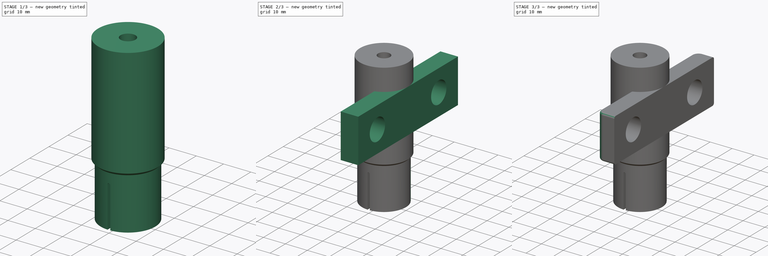
[diagram: build sequence overview — one tinted view per stage of 3, left to right]
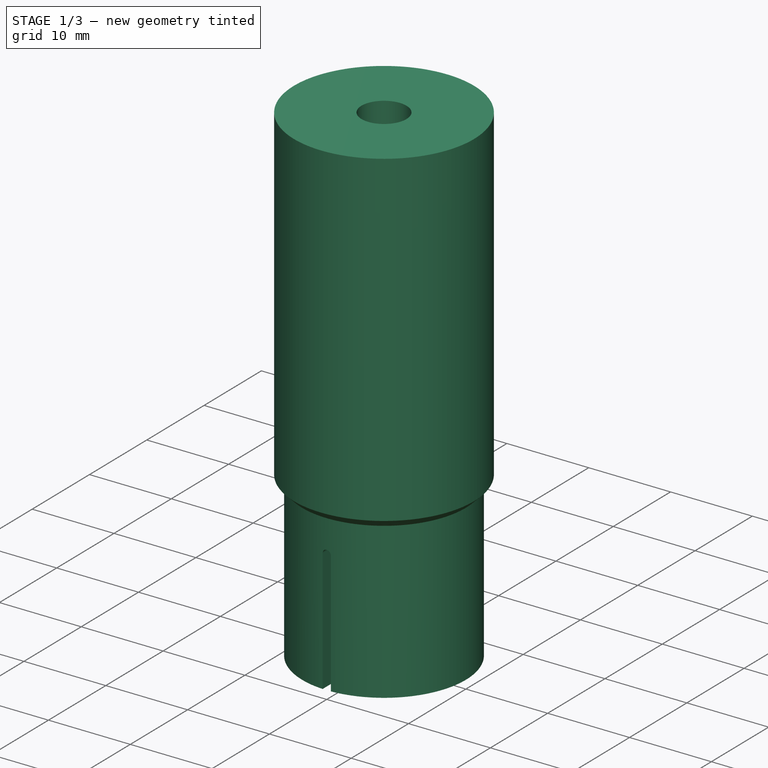
[diagram: stage 1 of 3 — iso view after this stage's code; geometry added in this stage tinted green]
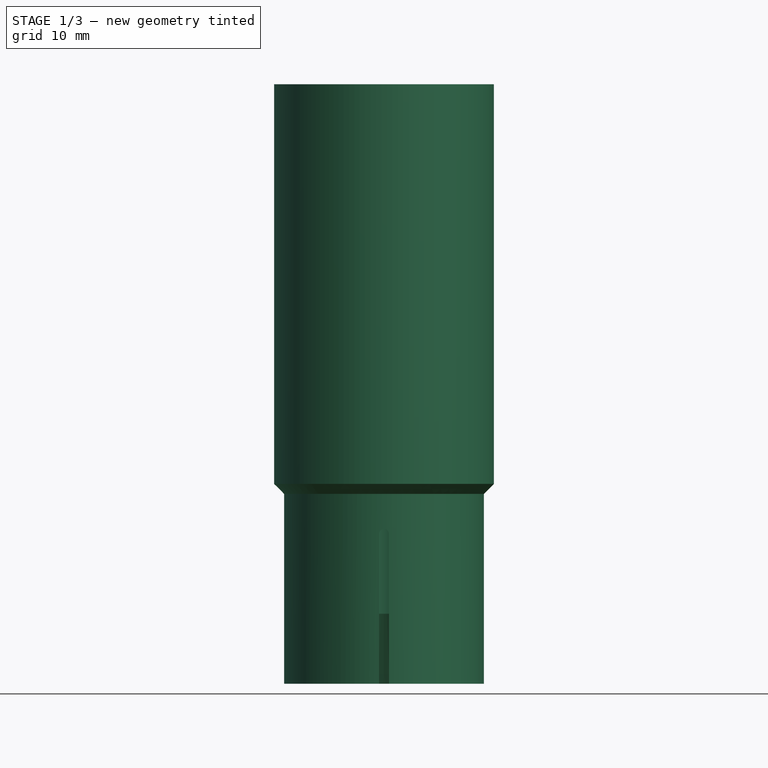
[diagram: stage 1 of 3 — front view after this stage's code; geometry added in this stage tinted green]
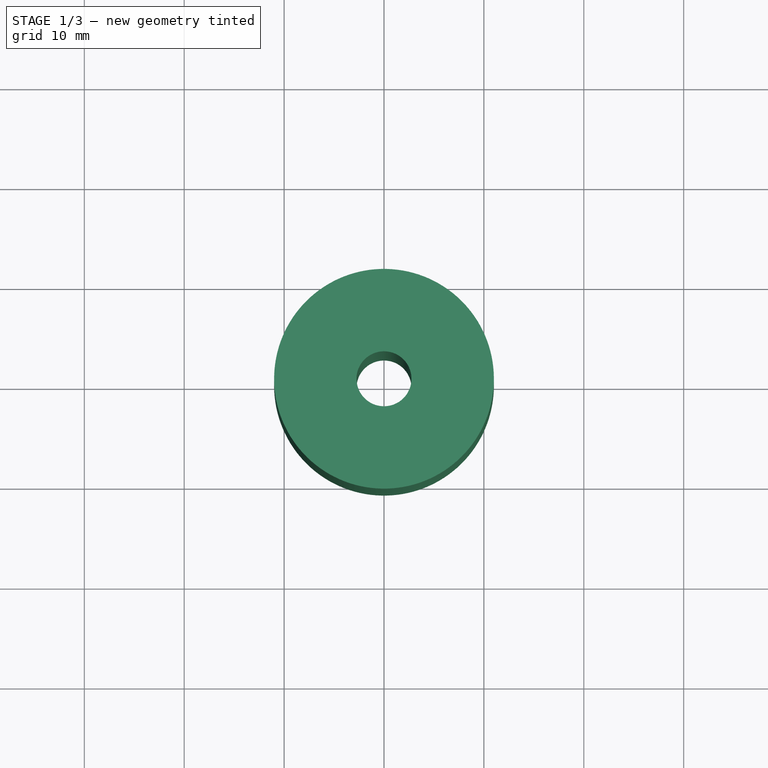
[diagram: stage 1 of 3 — top view after this stage's code; geometry added in this stage tinted green]
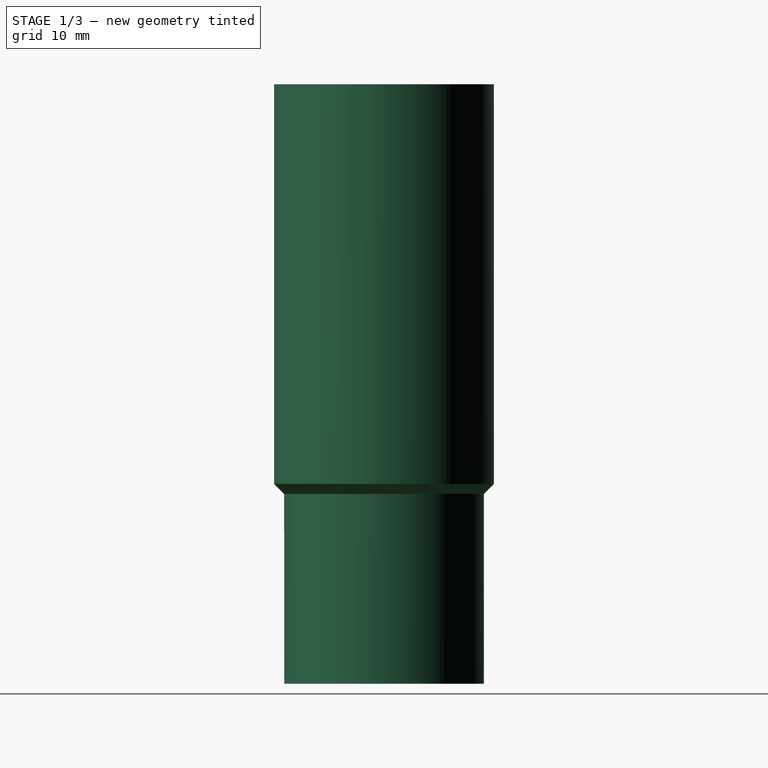
[diagram: stage 1 of 3 — right view after this stage's code; geometry added in this stage tinted green]
FCSTD DOCUMENT  (FreeCAD 0.20R27319 (Git))
Label: StopWithMounting
License: All rights reserved
LicenseURL: http://en.wikipedia.org/wiki/All_rights_reserved
objects: Sketcher::SketchObject×3, PartDesign::Plane×2, PartDesign::Fillet×2, PartDesign::Revolution×1, PartDesign::Pocket×1, PartDesign::PolarPattern×1, Spreadsheet::Sheet×1, PartDesign::Pad×1, PartDesign::Body×1
note: 17 computed .brp shape members not serialized (recipe doc carries the construction recipe); baked Part::Feature solids carry a one-line shape summary decoded from their .brp

FEATURE [Sketcher::SketchObject] Sketch
  FullyConstrained = true
  MapMode = 5
  Placement = pos=(0,0,0) rot=(1,0,0;1.5708rad)
  Support = -> [XZ_Plane]
  expr: Constraints[19] = 90 + 45 + 20
  expr: Constraints[7] = <<Parameters>>.StopHeight
  sketch-geometry (7):
    g0: LineSegment StartX=2.75 StartY=40 StartZ=0 EndX=11 EndY=40 EndZ=0
    g1: LineSegment StartX=11 StartY=40 StartZ=0 EndX=11 EndY=0 EndZ=0
    g2: LineSegment StartX=10 StartY=-20 StartZ=0 EndX=6.01415 EndY=-20 EndZ=0
    g3: LineSegment StartX=2.75 StartY=-13 StartZ=0 EndX=2.75 EndY=40 EndZ=0
    g4: LineSegment StartX=11 StartY=0 StartZ=0 EndX=10 EndY=-1 EndZ=0
    g5: LineSegment StartX=10 StartY=-1 StartZ=0 EndX=10 EndY=-20 EndZ=0
    g6: LineSegment StartX=2.75 StartY=-13 StartZ=0 EndX=6.01415 EndY=-20 EndZ=0
  constraints (21):
    c: Coincident(g0,g1)
    c: Horizontal(g0)
    c: Horizontal(g2)
    c: Vertical(g1)
    c: Vertical(g3)
    c: Distance(g0,g-2) = 11
    c: Distance(g0,g-2) = 2.75
    c: Distance(g0,g-1) = 40
    c: Coincident(g0,g3)
    c: Coincident(g4,g5)
    c: Vertical(g5)
    c: Distance(g5,g-2) = 10
    c: Coincident(g1,g4)
    c: Coincident(g2,g5)
    c: Coincident(g3,g6)
    c: Coincident(g2,g6)
    c: PointOnObject(g1,g-1)
    c: Angle(g4,g1,g1) = 0.785398
    c: DistanceY(g2,g1) = 20
    c: Angle(g6,g3) = 2.70526
    c: DistanceY(g2,g3) = 7
FEATURE [PartDesign::Revolution] Revolution
  Angle = 360
  Axis = (0,-2e-16,1)
  Base = (0,0,0)
  Placement = pos=(0,0,0) rot=(1,0,0;1.5708rad)
  Profile = -> Sketch
  ReferenceAxis = -> Sketch [V_Axis]
  Reversed = true
FEATURE [PartDesign::Plane] DatumPlane
  AttachmentOffset = pos=(0,0,0) rot=(1,0,0;1.5708rad)
  Length = 61.4018
  MapMode = 5
  Placement = pos=(0,-4.4e-15,-20) rot=(1,0,0;4.71239rad)
  ResizeMode = 0
  Support = -> [Revolution]
  Width = 76.4018
FEATURE [Sketcher::SketchObject] Sketch001
  FullyConstrained = true
  MapMode = 5
  Placement = pos=(0,-4.4e-15,-20) rot=(-1,0,0;1.5708rad)
  Support = -> [DatumPlane]
  sketch-geometry (5):
    g0: LineSegment StartX=0.5 StartY=-15 StartZ=0 EndX=0.5 EndY=20 EndZ=0
    g1: LineSegment StartX=0.5 StartY=20 StartZ=0 EndX=-0.5 EndY=20 EndZ=0
    g2: LineSegment StartX=-0.5 StartY=20 StartZ=0 EndX=-0.5 EndY=-15 EndZ=0
    g3: GeomPoint X=0 Y=0 Z=0
    g4: ArcOfCircle CenterX=0 CenterY=-15 CenterZ=0 NormalX=0 NormalY=0 NormalZ=1 AngleXU=0 Radius=0.5 StartAngle=3.14159 EndAngle=6.28319
  constraints (12):
    c: Coincident(g0,g1)
    c: Coincident(g1,g2)
    c: Horizontal(g1)
    c: Vertical(g0)
    c: Vertical(g2)
    c: Coincident(g3,g-1)
    c: DistanceX(g1,g1) = 1
    c: DistanceY(g-1,g0) = 20
    c: Tangent(g0,g4) = -1.5708
    c: Tangent(g2,g4) = -1.5708
    c: PointOnObject(g4,g-2)
    c: DistanceY(g4,g-1) = 15
FEATURE [PartDesign::Pocket] Pocket
  BaseFeature = -> Revolution
  Direction = (0,-1,-2e-16)
  Length = 0
  Length2 = 1
  Placement = pos=(0,0,0) rot=(1,0,0;1.5708rad)
  Profile = -> Sketch001
  ReferenceAxis = -> Sketch001 [N_Axis]
  Type = 1
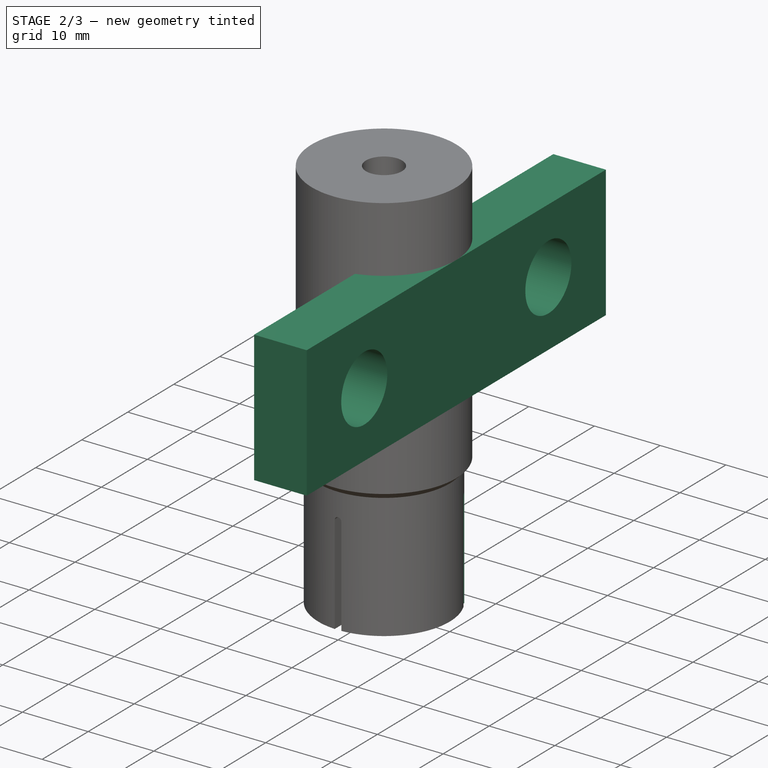
[diagram: stage 2 of 3 — iso view after this stage's code; geometry added in this stage tinted green]
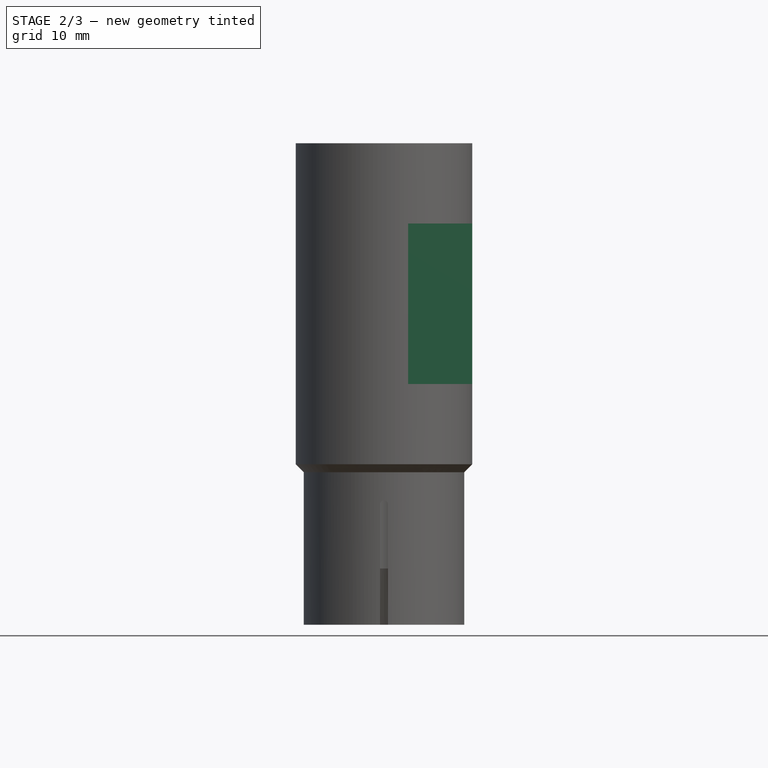
[diagram: stage 2 of 3 — front view after this stage's code; geometry added in this stage tinted green]
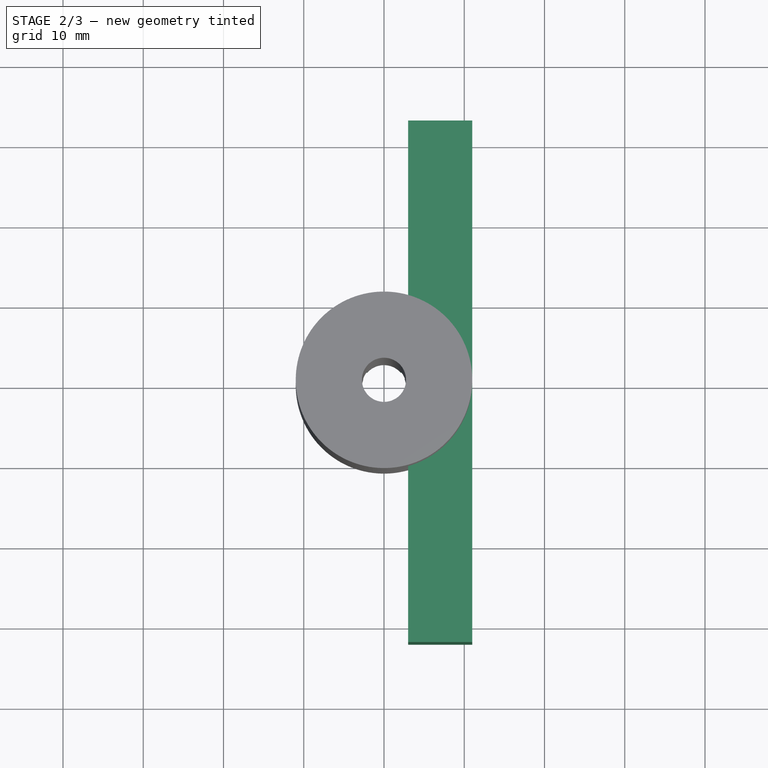
[diagram: stage 2 of 3 — top view after this stage's code; geometry added in this stage tinted green]
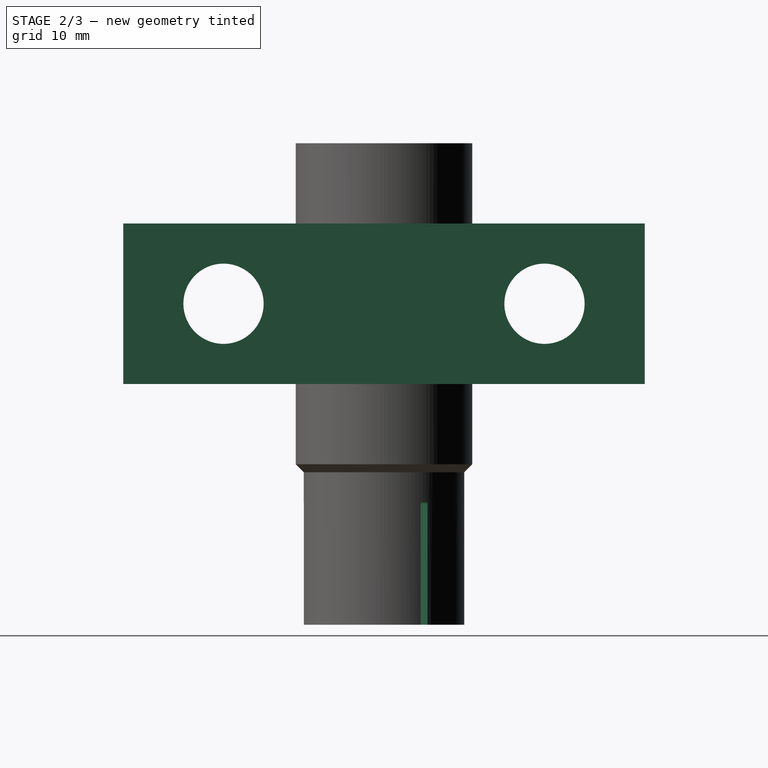
[diagram: stage 2 of 3 — right view after this stage's code; geometry added in this stage tinted green]
FEATURE [PartDesign::PolarPattern] PolarPattern
  Angle = 360
  Axis = -> Z_Axis
  BaseFeature = -> Pocket
  Occurrences = 3
  Originals = -> [Pocket]
  Overlap = 0
  Placement = pos=(0,0,0) rot=(1,0,0;1.5708rad)
FEATURE [Spreadsheet::Sheet] Spreadsheet  label="Parameters"
  cells = A1=StopHeight; B1(StopHeight)=40
FEATURE [PartDesign::Plane] DatumPlane001
  Length = 78
  MapMode = 6
  Placement = pos=(11,0,0) rot=(0.57735,0.57735,0.57735;2.0944rad)
  ResizeMode = 0
  Support = -> [PolarPattern]
  Width = 78
FEATURE [Sketcher::SketchObject] Sketch002
  FullyConstrained = true
  MapMode = 5
  Placement = pos=(11,0,0) rot=(0.57735,0.57735,0.57735;2.0944rad)
  Support = -> [DatumPlane001]
  sketch-geometry (7):
    g0: LineSegment StartX=-32.5 StartY=30 StartZ=0 EndX=-32.5 EndY=10 EndZ=0
    g1: LineSegment StartX=-32.5 StartY=10 StartZ=0 EndX=32.5 EndY=10 EndZ=0
    g2: LineSegment StartX=32.5 StartY=10 StartZ=0 EndX=32.5 EndY=30 EndZ=0
    g3: LineSegment StartX=32.5 StartY=30 StartZ=0 EndX=-32.5 EndY=30 EndZ=0
    g4: GeomPoint X=0 Y=20 Z=0
    g5: Circle CenterX=-20 CenterY=20 CenterZ=0 NormalX=0 NormalY=0 NormalZ=1 AngleXU=0 Radius=5
    g6: Circle CenterX=20 CenterY=20 CenterZ=0 NormalX=0 NormalY=0 NormalZ=1 AngleXU=0 Radius=5
  constraints (18):
    c: Coincident(g0,g1)
    c: Coincident(g1,g2)
    c: Coincident(g2,g3)
    c: Coincident(g3,g0)
    c: Horizontal(g1)
    c: Horizontal(g3)
    c: Vertical(g0)
    c: Vertical(g2)
    c: Symmetric(g1,g0,g4)
    c: PointOnObject(g4,g-2)
    c: DistanceX(g3,g3) = 65
    c: DistanceY(g2,g2) = 20
    c: Horizontal(g5,g4)
    c: DistanceX(g5,g4) = 20
    c: Diameter(g5) = 10
    c: DistanceY(g-1,g4) = 20
    c: Symmetric(g5,g6,g-2)
    c: Equal(g5,g6)
FEATURE [PartDesign::Pad] Pad
  BaseFeature = -> PolarPattern
  Direction = (1,2e-16,2e-16)
  Length = 8
  Length2 = 10
  Placement = pos=(0,0,0) rot=(1,0,0;1.5708rad)
  Profile = -> Sketch002
  ReferenceAxis = -> Sketch002 [N_Axis]
  Reversed = true
  Type = 0
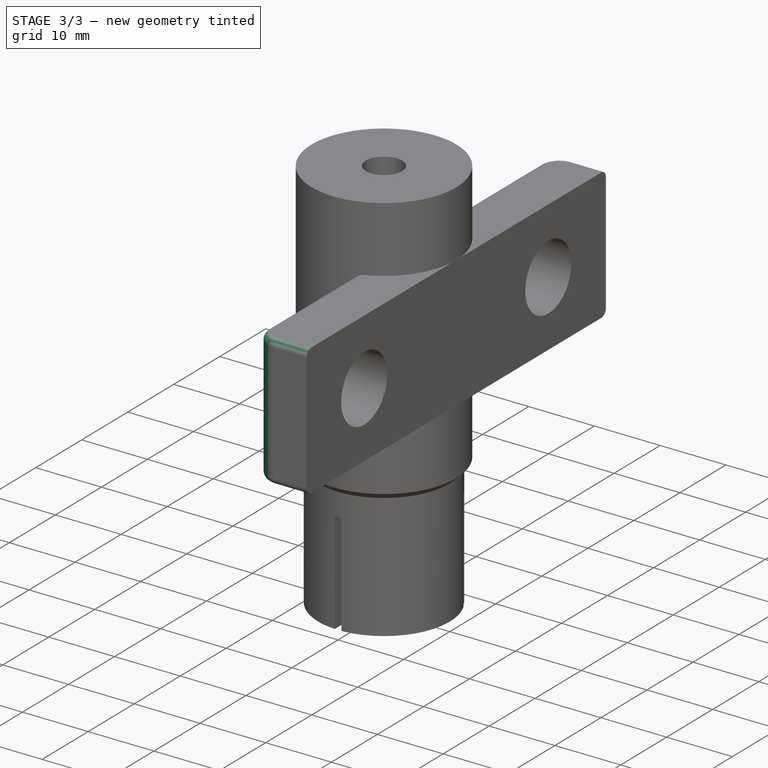
[diagram: stage 3 of 3 — iso view after this stage's code; geometry added in this stage tinted green]
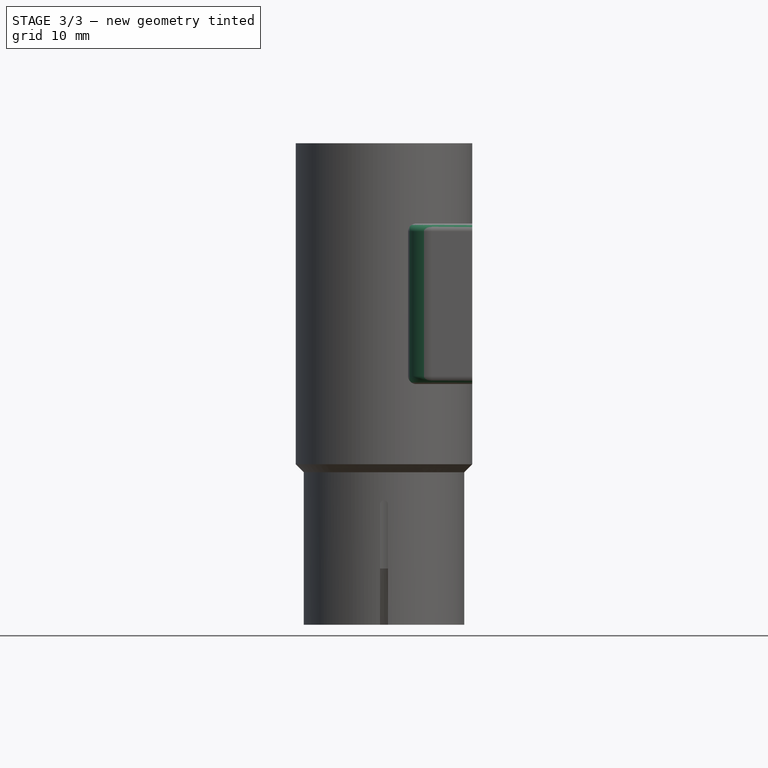
[diagram: stage 3 of 3 — front view after this stage's code; geometry added in this stage tinted green]
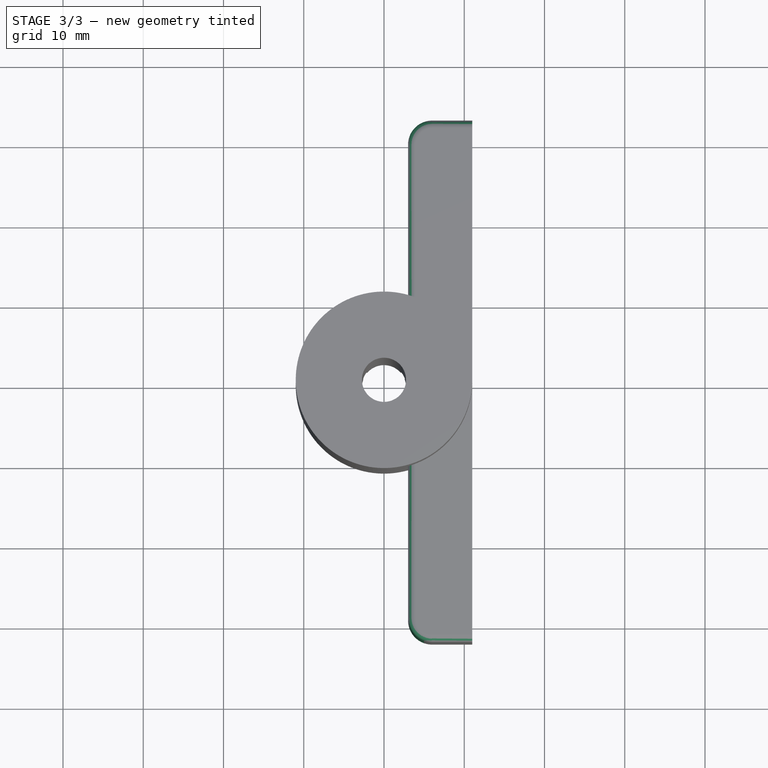
[diagram: stage 3 of 3 — top view after this stage's code; geometry added in this stage tinted green]
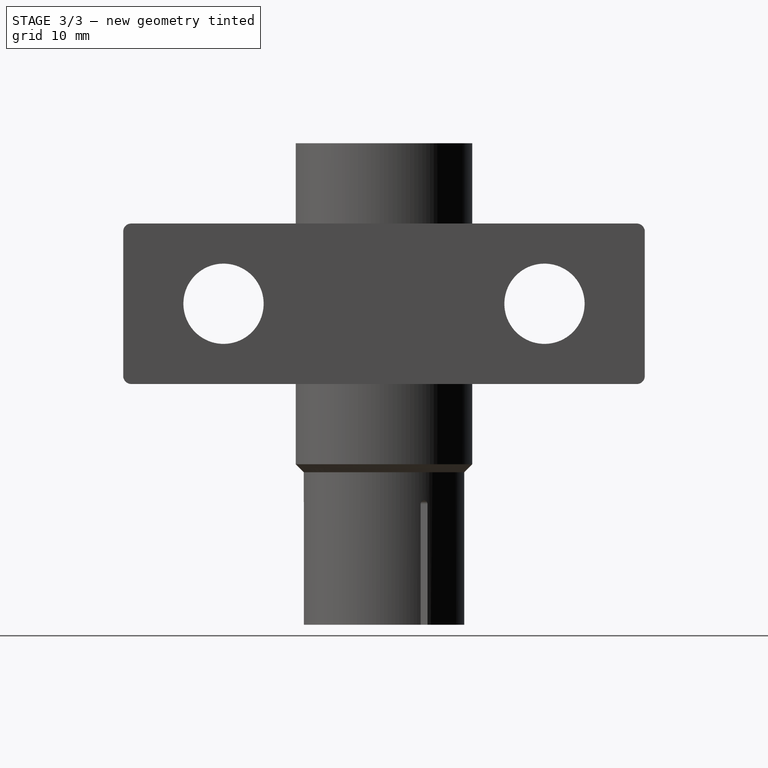
[diagram: stage 3 of 3 — right view after this stage's code; geometry added in this stage tinted green]
FEATURE [PartDesign::Fillet] Fillet
  Base = -> Pad [Edge69,Edge77]
  BaseFeature = -> Pad
  Placement = pos=(0,0,0) rot=(1,0,0;1.5708rad)
  Radius = 3
  SupportTransform = false
FEATURE [PartDesign::Fillet] Fillet001
  Base = -> Fillet [Edge35,Edge34,Edge15,Edge4]
  BaseFeature = -> Fillet
  Placement = pos=(0,0,0) rot=(1,0,0;1.5708rad)
  Radius = 1
  SupportTransform = false
FEATURE [PartDesign::Body] Body
  Group = -> [Sketch,Revolution,DatumPlane,Sketch001,Pocket,PolarPattern,DatumPlane001,Sketch002,Pad,Fillet,Fillet001]
  Origin = -> Origin
  Tip = -> Fillet001
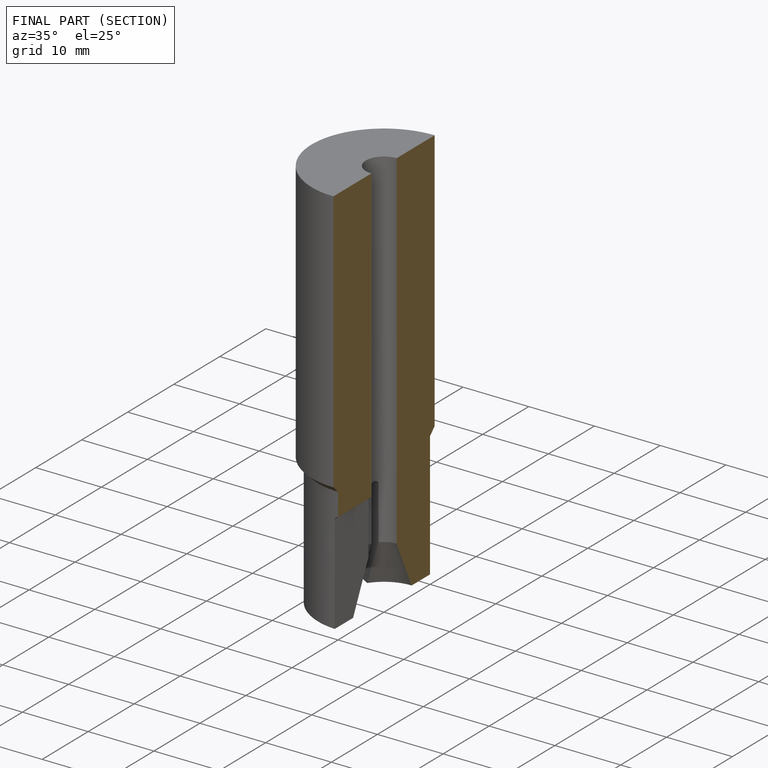
[diagram: finished part — half-section view (interior)]
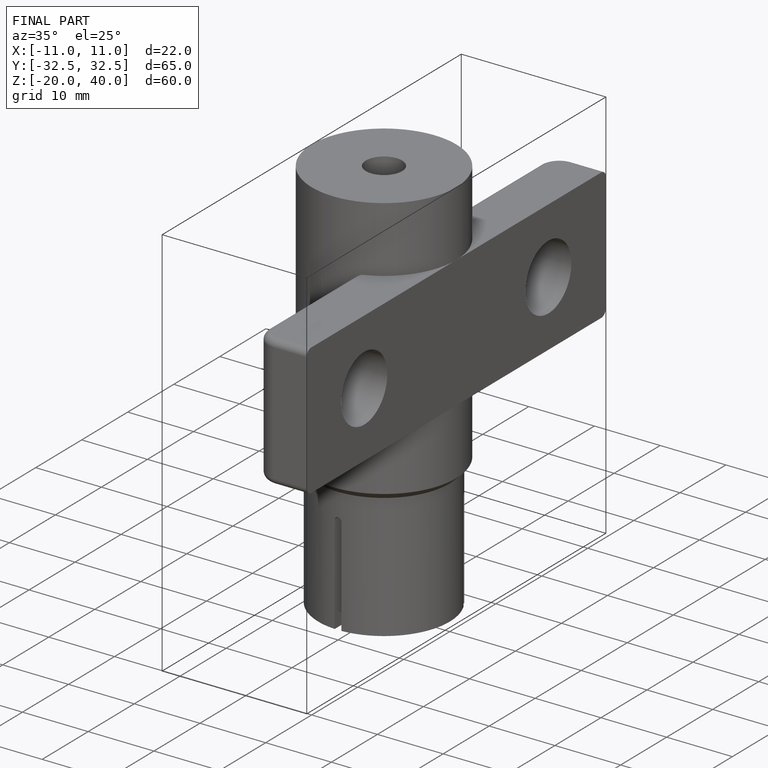
[diagram: finished part — iso view with bounding-box wireframe]
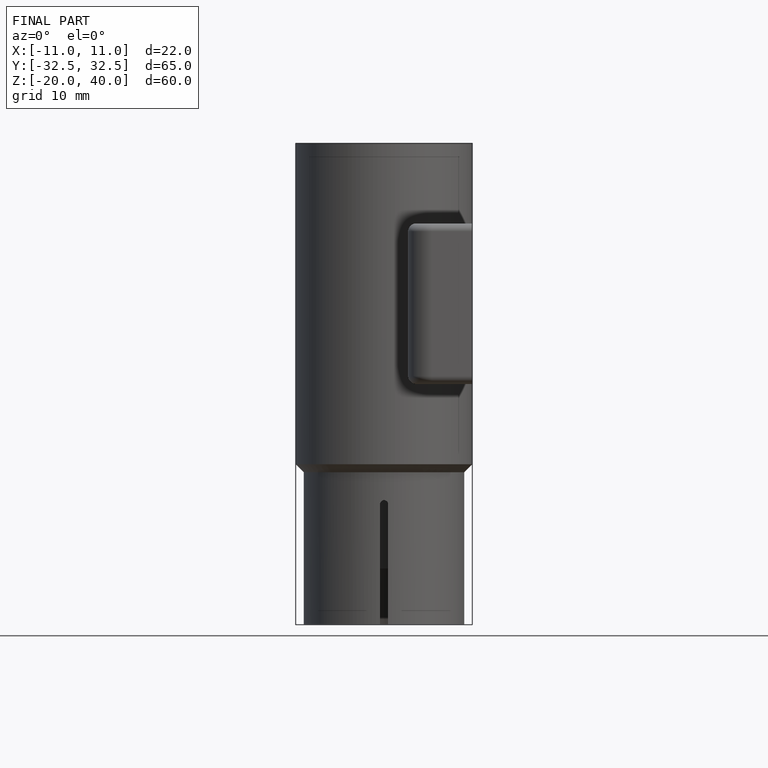
[diagram: finished part — front view with bounding-box wireframe]
